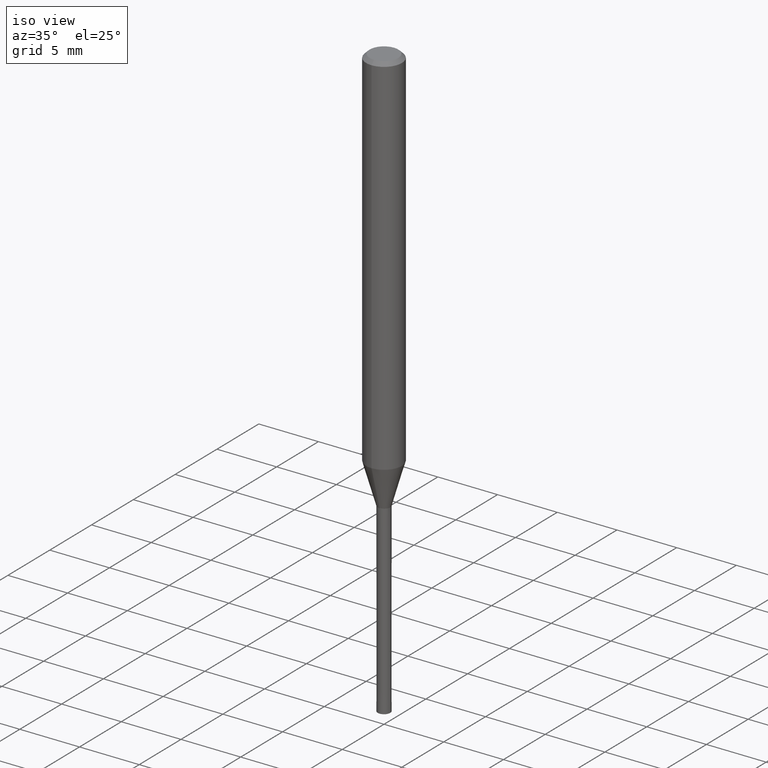
[diagram: clean part render]
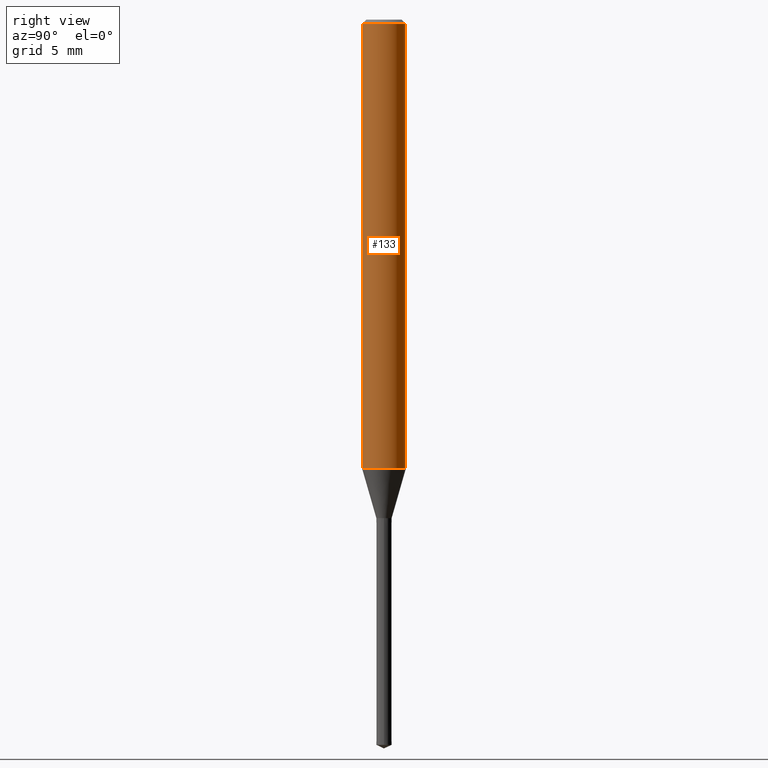
[diagram: tour spotlight — one face highlighted and labeled with its STEP entity id]
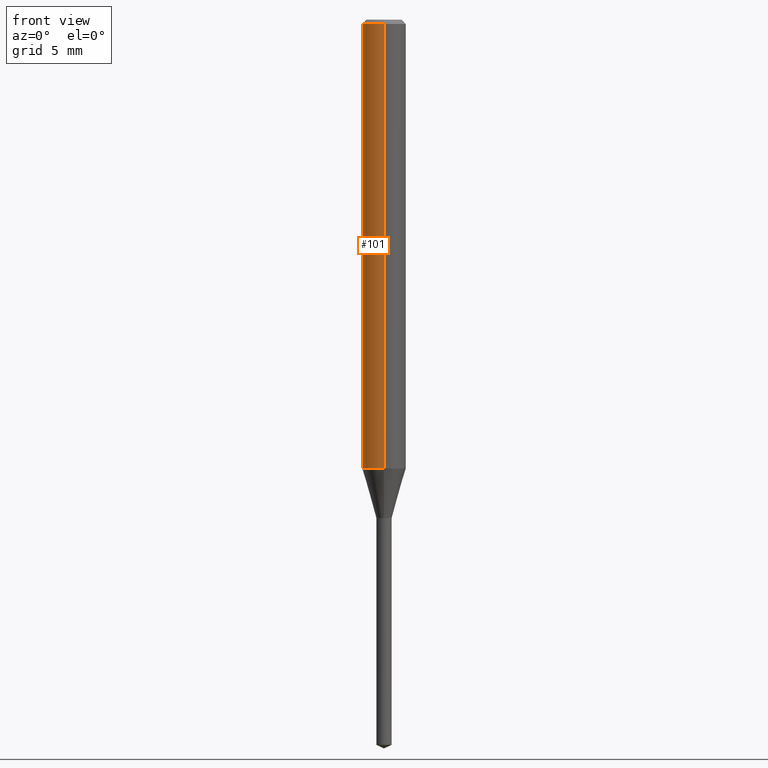
[diagram: tour spotlight — one face highlighted and labeled with its STEP entity id]
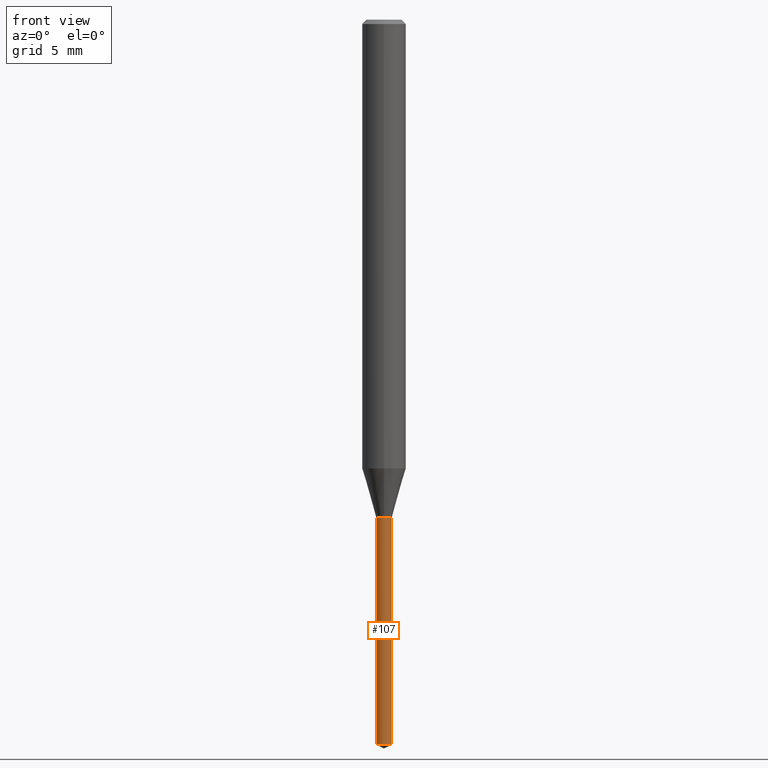
[diagram: tour spotlight — one face highlighted and labeled with its STEP entity id]
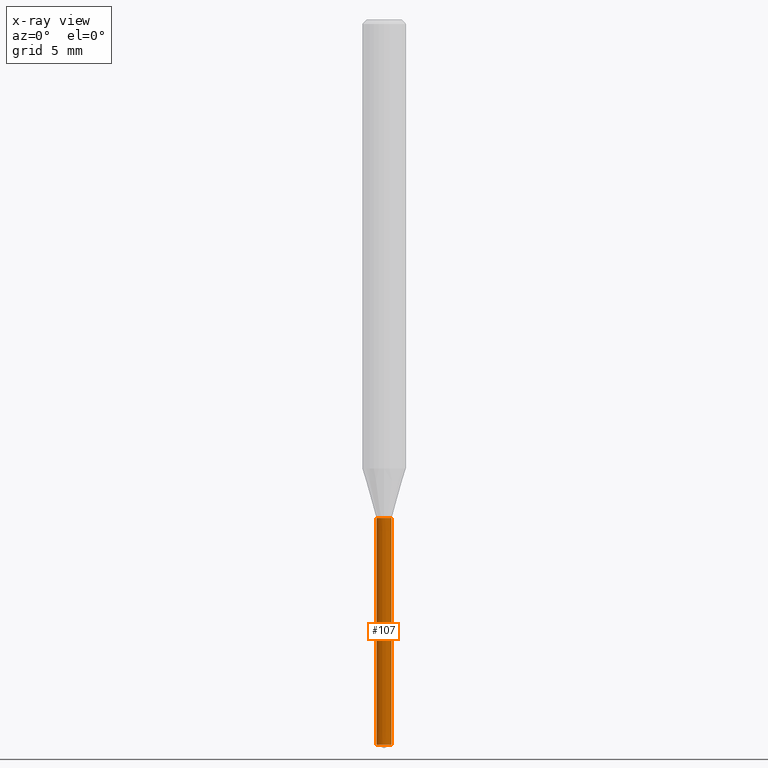
[diagram: x-ray of the same camera — body ghosted, this tour face saturated]
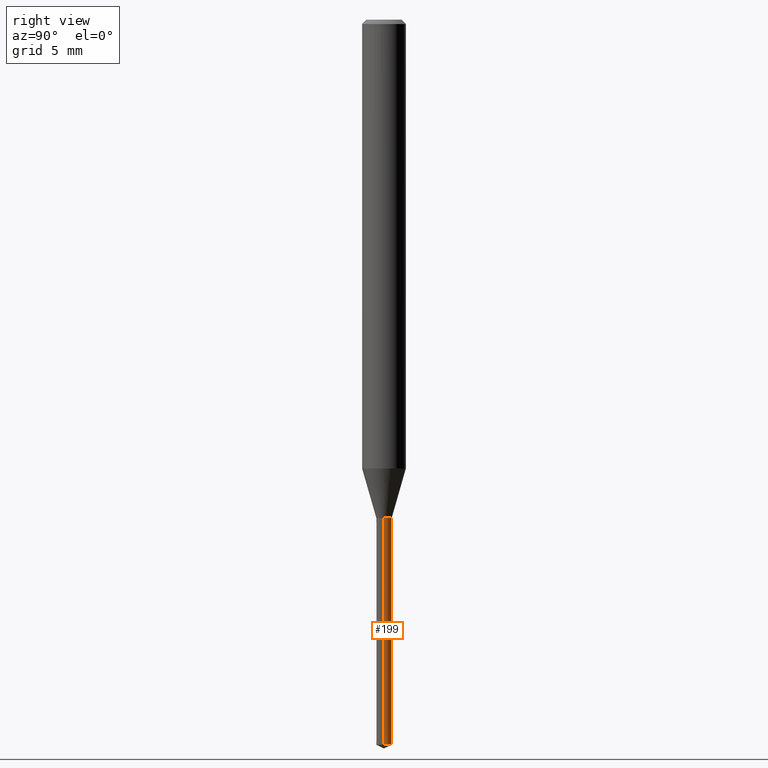
[diagram: tour spotlight — one face highlighted and labeled with its STEP entity id]
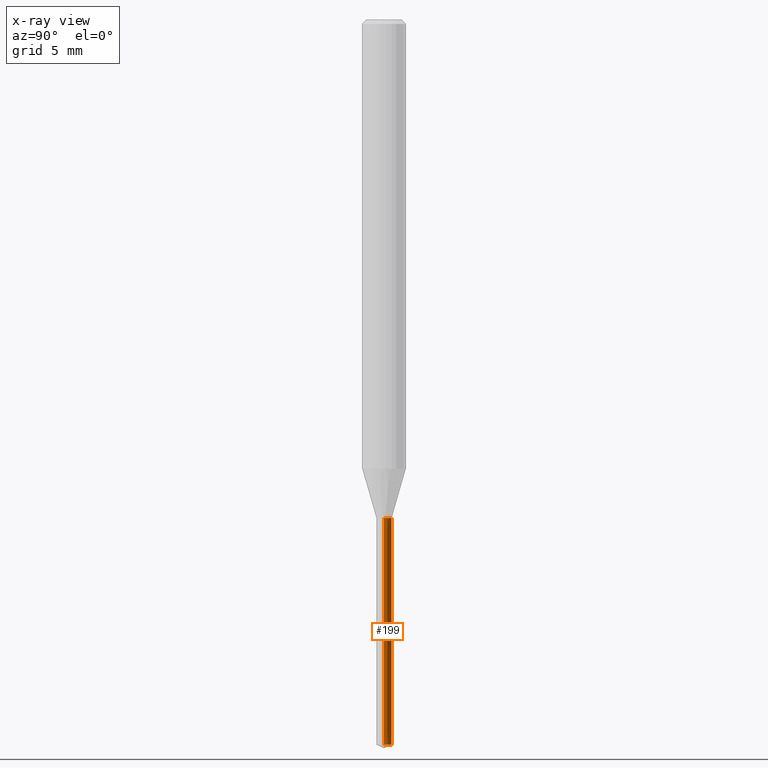
[diagram: x-ray of the same camera — body ghosted, this tour face saturated]
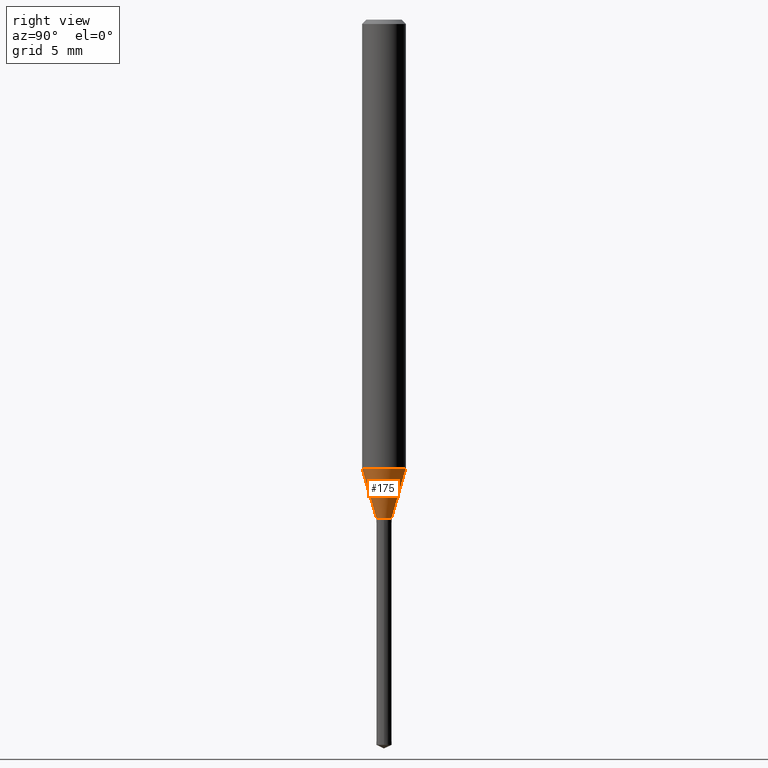
[diagram: tour spotlight — one face highlighted and labeled with its STEP entity id]
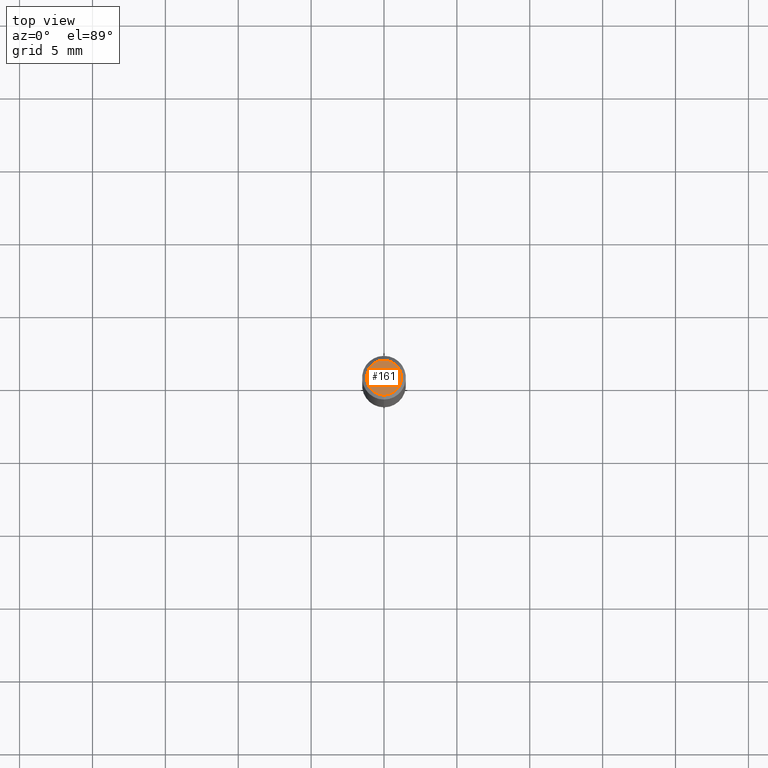
[diagram: tour spotlight — one face highlighted and labeled with its STEP entity id]
A machine part: a face-by-face anatomy tour. The part has 15 B-rep faces; the first image is the clean iso view, then the 6 largest visible faces are spotlighted one at a time (largest first), each with its STEP entity span.

Face 1 — right view, entity #133. In plain terms, the highlighted cylindrical surface (edge-blend (fillet) strip) has radius 1.5 mm, axis along (-0, -0, 1).
Definition (entity closure, byte-faithful):
#103=EDGE_CURVE('',#141,#203,#239,.T.);
#113=EDGE_CURVE('',#155,#195,#250,.T.);
#133=ADVANCED_FACE('',(#273),#274,.T.);
#141=VERTEX_POINT('',#283);
#155=VERTEX_POINT('',#298);
#179=EDGE_CURVE('',#195,#203,#326,.T.);
#181=EDGE_CURVE('',#141,#155,#328,.T.);
#195=VERTEX_POINT('',#342);
#203=VERTEX_POINT('',#353);
#239=CIRCLE('',#385,1.5);
#250=CIRCLE('',#400,1.5);
#273=FACE_OUTER_BOUND('',#429,.T.);
#274=CYLINDRICAL_SURFACE('',#430,1.5);
#283=CARTESIAN_POINT('',(0.0,1.5,-0.300000000000001));
#298=CARTESIAN_POINT('',(0.0,1.5,-30.8));
#326=LINE('',#492,#493);
#328=LINE('',#496,#497);
#342=CARTESIAN_POINT('',(1.83690953073357E-016,-1.5,-30.8));
#353=CARTESIAN_POINT('',(1.83690953073357E-016,-1.5,-0.300000000000001));
#385=AXIS2_PLACEMENT_3D('',#551,#552,#553);
#400=AXIS2_PLACEMENT_3D('',#566,#567,#568);
#429=EDGE_LOOP('',(#598,#599,#600,#601));
#430=AXIS2_PLACEMENT_3D('',#602,#603,#604);
#492=CARTESIAN_POINT('',(1.83690953073357E-016,-1.5,-15.55));
#493=VECTOR('',#667,1.0);
#496=CARTESIAN_POINT('',(-1.83690953073357E-016,1.5,-15.55));
#497=VECTOR('',#668,1.0);
#551=CARTESIAN_POINT('',(0.0,0.0,-0.300000000000001));
#552=DIRECTION('',(0.0,0.0,-1.0));
#553=DIRECTION('',(0.0,1.0,0.0));
#566=CARTESIAN_POINT('',(0.0,0.0,-30.8));
#567=DIRECTION('',(0.0,0.0,-1.0));
#568=DIRECTION('',(0.0,1.0,0.0));
#598=ORIENTED_EDGE('',*,*,#181,.F.);
#599=ORIENTED_EDGE('',*,*,#103,.T.);
#600=ORIENTED_EDGE('',*,*,#179,.F.);
#601=ORIENTED_EDGE('',*,*,#113,.F.);
#602=CARTESIAN_POINT('',(0.0,0.0,-15.55));
#603=DIRECTION('',(-0.0,-0.0,1.0));
#604=DIRECTION('',(0.0,1.0,0.0));
#667=DIRECTION('',(-0.0,-0.0,1.0));
#668=DIRECTION('',(0.0,0.0,-1.0));

Face 2 — front view, entity #101. In plain terms, the highlighted cylindrical surface (edge-blend (fillet) strip) has radius 1.5 mm, axis along (-0, -0, 1).
Definition (entity closure, byte-faithful):
#97=EDGE_CURVE('',#203,#141,#232,.T.);
#101=ADVANCED_FACE('',(#236),#237,.T.);
#141=VERTEX_POINT('',#283);
#155=VERTEX_POINT('',#298);
#163=EDGE_CURVE('',#195,#155,#307,.T.);
#179=EDGE_CURVE('',#195,#203,#326,.T.);
#181=EDGE_CURVE('',#141,#155,#328,.T.);
#195=VERTEX_POINT('',#342);
#203=VERTEX_POINT('',#353);
#232=CIRCLE('',#378,1.5);
#236=FACE_OUTER_BOUND('',#381,.T.);
#237=CYLINDRICAL_SURFACE('',#382,1.5);
#283=CARTESIAN_POINT('',(0.0,1.5,-0.300000000000001));
#298=CARTESIAN_POINT('',(0.0,1.5,-30.8));
#307=CIRCLE('',#468,1.5);
#326=LINE('',#492,#493);
#328=LINE('',#496,#497);
#342=CARTESIAN_POINT('',(1.83690953073357E-016,-1.5,-30.8));
#353=CARTESIAN_POINT('',(1.83690953073357E-016,-1.5,-0.300000000000001));
#378=AXIS2_PLACEMENT_3D('',#539,#540,#541);
#381=EDGE_LOOP('',(#544,#545,#546,#547));
#382=AXIS2_PLACEMENT_3D('',#548,#549,#550);
#468=AXIS2_PLACEMENT_3D('',#633,#634,#635);
#492=CARTESIAN_POINT('',(1.83690953073357E-016,-1.5,-15.55));
#493=VECTOR('',#667,1.0);
#496=CARTESIAN_POINT('',(-1.83690953073357E-016,1.5,-15.55));
#497=VECTOR('',#668,1.0);
#539=CARTESIAN_POINT('',(0.0,0.0,-0.300000000000001));
#540=DIRECTION('',(0.0,0.0,-1.0));
#541=DIRECTION('',(0.0,1.0,0.0));
#544=ORIENTED_EDGE('',*,*,#181,.T.);
#545=ORIENTED_EDGE('',*,*,#163,.F.);
#546=ORIENTED_EDGE('',*,*,#179,.T.);
#547=ORIENTED_EDGE('',*,*,#97,.T.);
#548=CARTESIAN_POINT('',(0.0,0.0,-15.55));
#549=DIRECTION('',(-0.0,-0.0,1.0));
#550=DIRECTION('',(0.0,1.0,0.0));
#633=CARTESIAN_POINT('',(0.0,0.0,-30.8));
#634=DIRECTION('',(0.0,0.0,-1.0));
#635=DIRECTION('',(0.0,1.0,0.0));
#667=DIRECTION('',(-0.0,-0.0,1.0));
#668=DIRECTION('',(0.0,0.0,-1.0));

Face 3 — front view, entity #107. An x-ray twin of the same camera follows (body ghosted, this face saturated) — the face is partly hidden behind the body. In plain terms, the highlighted conical surface has half-angle 0.004 deg.
Definition (entity closure, byte-faithful):
#107=ADVANCED_FACE('',(#243),#244,.T.);
#109=EDGE_CURVE('',#167,#129,#246,.T.);
#111=VERTEX_POINT('',#248);
#129=VERTEX_POINT('',#269);
#131=EDGE_CURVE('',#111,#135,#271,.T.);
#135=VERTEX_POINT('',#276);
#167=VERTEX_POINT('',#311);
#187=EDGE_CURVE('',#135,#129,#334,.T.);
#193=EDGE_CURVE('',#167,#111,#340,.T.);
#243=FACE_OUTER_BOUND('',#391,.T.);
#244=CONICAL_SURFACE('',#392,0.5255,6.42872312288681E-005);
#246=CIRCLE('',#395,0.525);
#248=CARTESIAN_POINT('',(0.526,6.44142942110571E-017,-34.2));
#269=CARTESIAN_POINT('',(-0.525,0.0,-49.75518848));
#271=CIRCLE('',#427,0.526);
#276=CARTESIAN_POINT('',(-0.526,0.0,-34.2));
#311=CARTESIAN_POINT('',(0.525,6.42918335756748E-017,-49.75518848));
#334=LINE('',#506,#507);
#340=LINE('',#516,#517);
#391=EDGE_LOOP('',(#556,#557,#558,#559));
#392=AXIS2_PLACEMENT_3D('',#560,#561,#562);
#395=AXIS2_PLACEMENT_3D('',#563,#564,#565);
#427=AXIS2_PLACEMENT_3D('',#594,#595,#596);
#506=CARTESIAN_POINT('',(-0.5255,-6.43530638933659E-017,-41.97759424));
#507=VECTOR('',#675,1.0);
#516=CARTESIAN_POINT('',(0.5255,6.43530638933659E-017,-41.97759424));
#517=VECTOR('',#677,1.0);
#556=ORIENTED_EDGE('',*,*,#187,.T.);
#557=ORIENTED_EDGE('',*,*,#109,.F.);
#558=ORIENTED_EDGE('',*,*,#193,.T.);
#559=ORIENTED_EDGE('',*,*,#131,.T.);
#560=CARTESIAN_POINT('',(0.0,0.0,-41.97759424));
#561=DIRECTION('',(-0.0,-0.0,1.0));
#562=DIRECTION('',(-1.0,0.0,0.0));
#563=CARTESIAN_POINT('',(0.0,0.0,-49.75518848));
#564=DIRECTION('',(0.0,0.0,-1.0));
#565=DIRECTION('',(-1.0,0.0,0.0));
#594=CARTESIAN_POINT('',(0.0,0.0,-34.2));
#595=DIRECTION('',(0.0,0.0,-1.0));
#596=DIRECTION('',(-1.0,0.0,0.0));
#675=DIRECTION('',(6.42872311845865E-005,7.87265517782927E-021,-0.999999997933576));
#677=DIRECTION('',(6.42872311845865E-005,7.87265517782927E-021,0.999999997933576));

Face 4 — right view, entity #199. An x-ray twin of the same camera follows (body ghosted, this face saturated) — the face is partly hidden behind the body. In plain terms, the highlighted conical surface has half-angle 0.004 deg.
Definition (entity closure, byte-faithful):
#111=VERTEX_POINT('',#248);
#115=EDGE_CURVE('',#135,#111,#252,.T.);
#129=VERTEX_POINT('',#269);
#135=VERTEX_POINT('',#276);
#137=EDGE_CURVE('',#129,#167,#278,.T.);
#167=VERTEX_POINT('',#311);
#187=EDGE_CURVE('',#135,#129,#334,.T.);
#193=EDGE_CURVE('',#167,#111,#340,.T.);
#199=ADVANCED_FACE('',(#347),#348,.T.);
#248=CARTESIAN_POINT('',(0.526,6.44142942110571E-017,-34.2));
#252=CIRCLE('',#403,0.526);
#269=CARTESIAN_POINT('',(-0.525,0.0,-49.75518848));
#276=CARTESIAN_POINT('',(-0.526,0.0,-34.2));
#278=CIRCLE('',#435,0.525);
#311=CARTESIAN_POINT('',(0.525,6.42918335756748E-017,-49.75518848));
#334=LINE('',#506,#507);
#340=LINE('',#516,#517);
#347=FACE_OUTER_BOUND('',#524,.T.);
#348=CONICAL_SURFACE('',#525,0.5255,6.42872312288681E-005);
#403=AXIS2_PLACEMENT_3D('',#569,#570,#571);
#435=AXIS2_PLACEMENT_3D('',#605,#606,#607);
#506=CARTESIAN_POINT('',(-0.5255,-6.43530638933659E-017,-41.97759424));
#507=VECTOR('',#675,1.0);
#516=CARTESIAN_POINT('',(0.5255,6.43530638933659E-017,-41.97759424));
#517=VECTOR('',#677,1.0);
#524=EDGE_LOOP('',(#687,#688,#689,#690));
#525=AXIS2_PLACEMENT_3D('',#691,#692,#693);
#569=CARTESIAN_POINT('',(0.0,0.0,-34.2));
#570=DIRECTION('',(0.0,0.0,-1.0));
#571=DIRECTION('',(-1.0,0.0,0.0));
#605=CARTESIAN_POINT('',(0.0,0.0,-49.75518848));
#606=DIRECTION('',(0.0,0.0,-1.0));
#607=DIRECTION('',(-1.0,0.0,0.0));
#675=DIRECTION('',(6.42872311845865E-005,7.87265517782927E-021,-0.999999997933576));
#677=DIRECTION('',(6.42872311845865E-005,7.87265517782927E-021,0.999999997933576));
#687=ORIENTED_EDGE('',*,*,#187,.F.);
#688=ORIENTED_EDGE('',*,*,#115,.T.);
#689=ORIENTED_EDGE('',*,*,#193,.F.);
#690=ORIENTED_EDGE('',*,*,#137,.F.);
#691=CARTESIAN_POINT('',(0.0,0.0,-41.97759424));
#692=DIRECTION('',(-0.0,-0.0,1.0));
#693=DIRECTION('',(-1.0,0.0,0.0));

Face 5 — right view, entity #175. In plain terms, the highlighted conical surface has half-angle 16.005 deg.
Definition (entity closure, byte-faithful):
#113=EDGE_CURVE('',#155,#195,#250,.T.);
#119=EDGE_CURVE('',#155,#189,#256,.T.);
#127=EDGE_CURVE('',#145,#195,#267,.T.);
#145=VERTEX_POINT('',#287);
#155=VERTEX_POINT('',#298);
#169=EDGE_CURVE('',#189,#145,#313,.T.);
#175=ADVANCED_FACE('',(#320),#321,.T.);
#189=VERTEX_POINT('',#336);
#195=VERTEX_POINT('',#342);
#250=CIRCLE('',#400,1.5);
#256=LINE('',#408,#409);
#267=LINE('',#421,#422);
#287=CARTESIAN_POINT('',(6.42918335756748E-017,-0.525,-34.1991339745962));
#298=CARTESIAN_POINT('',(0.0,1.5,-30.8));
#313=CIRCLE('',#477,0.525);
#320=FACE_OUTER_BOUND('',#485,.T.);
#321=CONICAL_SURFACE('',#486,1.0125,0.279338040987868);
#336=CARTESIAN_POINT('',(0.0,0.525,-34.1991339745962));
#342=CARTESIAN_POINT('',(1.83690953073357E-016,-1.5,-30.8));
#400=AXIS2_PLACEMENT_3D('',#566,#567,#568);
#408=CARTESIAN_POINT('',(-1.23991393324516E-016,1.0125,-32.4995669872981));
#409=VECTOR('',#572,1.0);
#421=CARTESIAN_POINT('',(1.23991393324516E-016,-1.0125,-32.4995669872981));
#422=VECTOR('',#593,1.0);
#477=AXIS2_PLACEMENT_3D('',#637,#638,#639);
#485=EDGE_LOOP('',(#652,#653,#654,#655));
#486=AXIS2_PLACEMENT_3D('',#656,#657,#658);
#566=CARTESIAN_POINT('',(0.0,0.0,-30.8));
#567=DIRECTION('',(0.0,0.0,-1.0));
#568=DIRECTION('',(0.0,1.0,0.0));
#572=DIRECTION('',(3.37647739832205E-017,-0.275719408753924,-0.961238163847226));
#593=DIRECTION('',(3.37647739832205E-017,-0.275719408753924,0.961238163847226));
#637=CARTESIAN_POINT('',(0.0,0.0,-34.1991339745962));
#638=DIRECTION('',(0.0,0.0,-1.0));
#639=DIRECTION('',(0.0,1.0,0.0));
#652=ORIENTED_EDGE('',*,*,#119,.F.);
#653=ORIENTED_EDGE('',*,*,#113,.T.);
#654=ORIENTED_EDGE('',*,*,#127,.F.);
#655=ORIENTED_EDGE('',*,*,#169,.F.);
#656=CARTESIAN_POINT('',(0.0,0.0,-32.4995669872981));
#657=DIRECTION('',(-0.0,-0.0,1.0));
#658=DIRECTION('',(0.0,1.0,0.0));

Face 6 — top view, entity #161. In plain terms, the highlighted planar face has unit normal (-0, 0, 1).
Definition (entity closure, byte-faithful):
#91=EDGE_CURVE('',#149,#117,#226,.T.);
#117=VERTEX_POINT('',#254);
#149=VERTEX_POINT('',#292);
#161=ADVANCED_FACE('',(#304),#305,.T.);
#183=EDGE_CURVE('',#117,#149,#330,.T.);
#226=CIRCLE('',#369,1.2);
#254=CARTESIAN_POINT('',(1.46952762458685E-016,-1.2,0.0));
#292=CARTESIAN_POINT('',(0.0,1.2,0.0));
#304=FACE_OUTER_BOUND('',#464,.T.);
#305=PLANE('',#465);
#330=CIRCLE('',#500,1.2);
#369=AXIS2_PLACEMENT_3D('',#535,#536,#537);
#464=EDGE_LOOP('',(#628,#629));
#465=AXIS2_PLACEMENT_3D('',#630,#631,#632);
#500=AXIS2_PLACEMENT_3D('',#669,#670,#671);
#535=CARTESIAN_POINT('',(0.0,0.0,0.0));
#536=DIRECTION('',(0.0,0.0,-1.0));
#537=DIRECTION('',(0.0,1.0,0.0));
#628=ORIENTED_EDGE('',*,*,#91,.F.);
#629=ORIENTED_EDGE('',*,*,#183,.F.);
#630=CARTESIAN_POINT('',(0.0,0.6,0.0));
#631=DIRECTION('',(-0.0,0.0,1.0));
#632=DIRECTION('',(0.0,-1.0,0.0));
#669=CARTESIAN_POINT('',(0.0,0.0,0.0));
#670=DIRECTION('',(0.0,0.0,-1.0));
#671=DIRECTION('',(0.0,1.0,0.0));